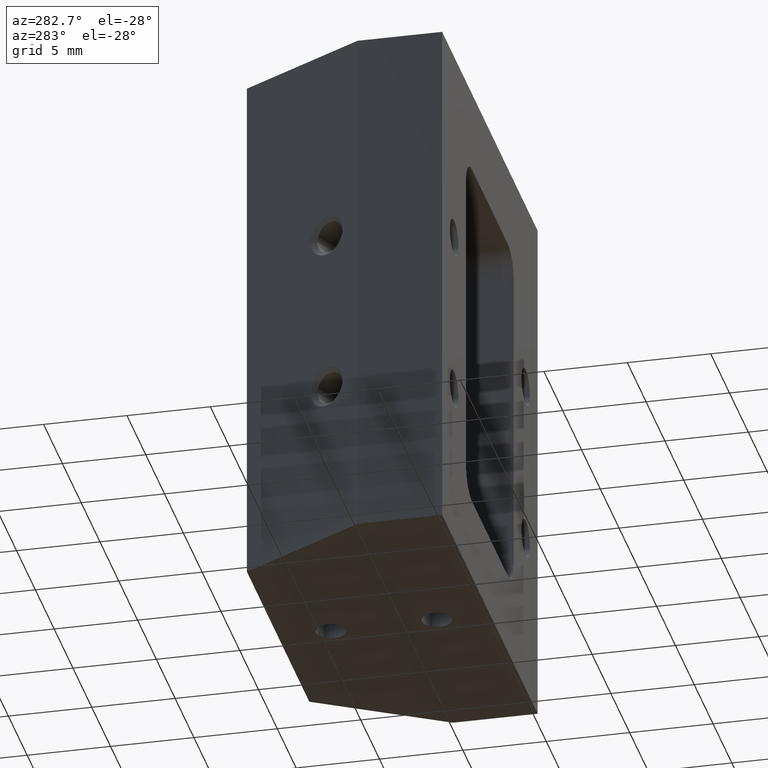
[diagram: clean part render]
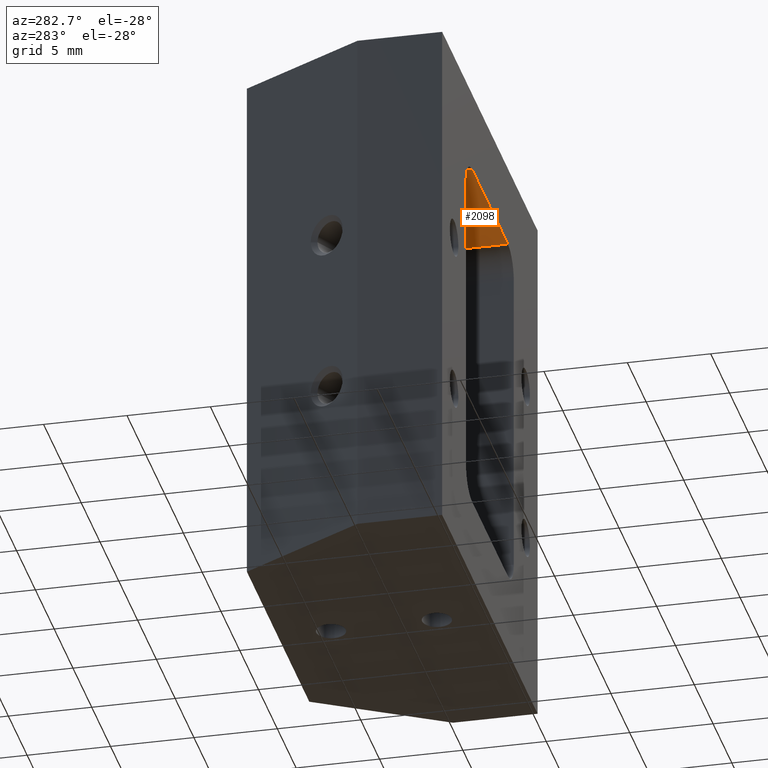
[diagram: same view with one face highlighted and labeled with its STEP entity id]
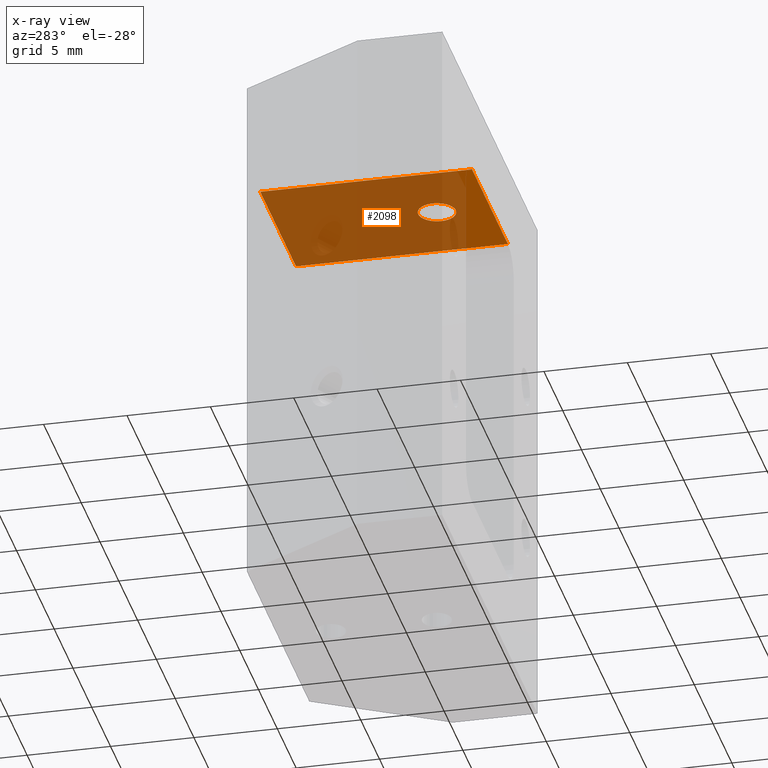
[diagram: x-ray of the same camera — body ghosted, the highlighted face saturated]
A machine part, auxiliary view. The second image highlights one B-rep face of the part: STEP entity #2098.
The next image is the same camera in x-ray: the body ghosted, the highlighted face saturated — about 88% of this face is hidden behind the body in this view.
In plain terms, the highlighted planar face has unit normal (0, 0, 1).
Its self-contained STEP definition (entity closure, byte-faithful):
#9 = EDGE_LOOP ( 'NONE', ( #1294, #1259 ) ) ;
#42 = EDGE_LOOP ( 'NONE', ( #1260, #1308, #1337, #1307 ) ) ;
#87 = CIRCLE ( 'NONE', #1205, 0.04449999999999996300 ) ;
#109 = LINE ( 'NONE', #313, #110 ) ;
#110 = VECTOR ( 'NONE', #315, 39.37007874015748100 ) ;
#119 = LINE ( 'NONE', #324, #123 ) ;
#123 = VECTOR ( 'NONE', #332, 39.37007874015748100 ) ;
#190 = DIRECTION ( 'NONE',  ( 1.000000000000000000, 0.0000000000000000000, -0.0000000000000000000 ) ) ;
#191 = DIRECTION ( 'NONE',  ( 0.0000000000000000000, 0.0000000000000000000, 1.000000000000000000 ) ) ;
#192 = CARTESIAN_POINT ( 'NONE',  ( 0.2500000000000002200, -1.365923996832131600E-016, 1.062992125984252100 ) ) ;
#193 = PLANE ( 'NONE',  #1987 ) ;
#273 = CARTESIAN_POINT ( 'NONE',  ( 1.377727649040771200E-017, 0.1250000000000000000, 1.062992125984252100 ) ) ;
#274 = DIRECTION ( 'NONE',  ( 0.0000000000000000000, 0.0000000000000000000, 1.000000000000000000 ) ) ;
#275 = DIRECTION ( 'NONE',  ( 1.000000000000000000, 0.0000000000000000000, 0.0000000000000000000 ) ) ;
#313 = CARTESIAN_POINT ( 'NONE',  ( 0.2500000000000002200, 0.4999999999999998300, 1.062992125984252100 ) ) ;
#315 = DIRECTION ( 'NONE',  ( 1.000000000000000000, -0.0000000000000000000, -0.0000000000000000000 ) ) ;
#324 = CARTESIAN_POINT ( 'NONE',  ( -0.1874999999999999700, 0.4999999999999998300, 1.062992125984252100 ) ) ;
#332 = DIRECTION ( 'NONE',  ( 0.0000000000000000000, 1.000000000000000000, 0.0000000000000000000 ) ) ;
#441 = DIRECTION ( 'NONE',  ( -0.0000000000000000000, -1.000000000000000000, -0.0000000000000000000 ) ) ;
#464 = CARTESIAN_POINT ( 'NONE',  ( 0.1875000000000001900, -1.365923996832131600E-016, 1.062992125984252100 ) ) ;
#593 = CARTESIAN_POINT ( 'NONE',  ( 0.2500000000000002200, -1.365923996832131600E-016, 1.062992125984252100 ) ) ;
#594 = DIRECTION ( 'NONE',  ( 1.000000000000000000, -0.0000000000000000000, -0.0000000000000000000 ) ) ;
#818 = CARTESIAN_POINT ( 'NONE',  ( 1.377727649040771200E-017, 0.1250000000000000000, 1.062992125984252100 ) ) ;
#819 = DIRECTION ( 'NONE',  ( 0.0000000000000000000, 0.0000000000000000000, 1.000000000000000000 ) ) ;
#820 = DIRECTION ( 'NONE',  ( 1.000000000000000000, 0.0000000000000000000, 0.0000000000000000000 ) ) ;
#845 = CARTESIAN_POINT ( 'NONE',  ( 0.1875000000000001900, -1.365923996832131600E-016, 1.062992125984252100 ) ) ;
#903 = CARTESIAN_POINT ( 'NONE',  ( -0.04449999999999994200, 0.1250000000000000000, 1.062992125984252100 ) ) ;
#905 = CARTESIAN_POINT ( 'NONE',  ( 0.04449999999999997700, 0.1250000000000000000, 1.062992125984252100 ) ) ;
#913 = CARTESIAN_POINT ( 'NONE',  ( -0.1874999999999999700, 0.4999999999999998300, 1.062992125984252100 ) ) ;
#925 = CARTESIAN_POINT ( 'NONE',  ( -0.1874999999999999700, -1.365923996832131600E-016, 1.062992125984252100 ) ) ;
#933 = CARTESIAN_POINT ( 'NONE',  ( 0.1875000000000001900, 0.4999999999999998300, 1.062992125984252100 ) ) ;
#1037 = EDGE_CURVE ( 'NONE', #1469, #1467, #87, .T. ) ;
#1054 = EDGE_CURVE ( 'NONE', #1483, #1508, #109, .T. ) ;
#1062 = EDGE_CURVE ( 'NONE', #1498, #1483, #119, .T. ) ;
#1095 = EDGE_CURVE ( 'NONE', #1508, #1344, #1669, .T. ) ;
#1143 = EDGE_CURVE ( 'NONE', #1498, #1344, #1719, .T. ) ;
#1191 = EDGE_CURVE ( 'NONE', #1467, #1469, #1777, .T. ) ;
#1205 = AXIS2_PLACEMENT_3D ( 'NONE', #273, #274, #275 ) ;
#1259 = ORIENTED_EDGE ( 'NONE', *, *, #1191, .T. ) ;
#1260 = ORIENTED_EDGE ( 'NONE', *, *, #1054, .T. ) ;
#1294 = ORIENTED_EDGE ( 'NONE', *, *, #1037, .T. ) ;
#1307 = ORIENTED_EDGE ( 'NONE', *, *, #1062, .T. ) ;
#1308 = ORIENTED_EDGE ( 'NONE', *, *, #1095, .T. ) ;
#1337 = ORIENTED_EDGE ( 'NONE', *, *, #1143, .F. ) ;
#1344 = VERTEX_POINT ( 'NONE', #845 ) ;
#1467 = VERTEX_POINT ( 'NONE', #903 ) ;
#1469 = VERTEX_POINT ( 'NONE', #905 ) ;
#1483 = VERTEX_POINT ( 'NONE', #913 ) ;
#1498 = VERTEX_POINT ( 'NONE', #925 ) ;
#1508 = VERTEX_POINT ( 'NONE', #933 ) ;
#1669 = LINE ( 'NONE', #464, #1673 ) ;
#1673 = VECTOR ( 'NONE', #441, 39.37007874015748100 ) ;
#1719 = LINE ( 'NONE', #593, #1721 ) ;
#1721 = VECTOR ( 'NONE', #594, 39.37007874015748100 ) ;
#1777 = CIRCLE ( 'NONE', #1957, 0.04449999999999996300 ) ;
#1848 = FACE_BOUND ( 'NONE', #9, .T. ) ;
#1852 = FACE_OUTER_BOUND ( 'NONE', #42, .T. ) ;
#1957 = AXIS2_PLACEMENT_3D ( 'NONE', #818, #819, #820 ) ;
#1987 = AXIS2_PLACEMENT_3D ( 'NONE', #192, #191, #190 ) ;
#2098 = ADVANCED_FACE ( 'NONE', ( #1848, #1852 ), #193, .F. ) ;